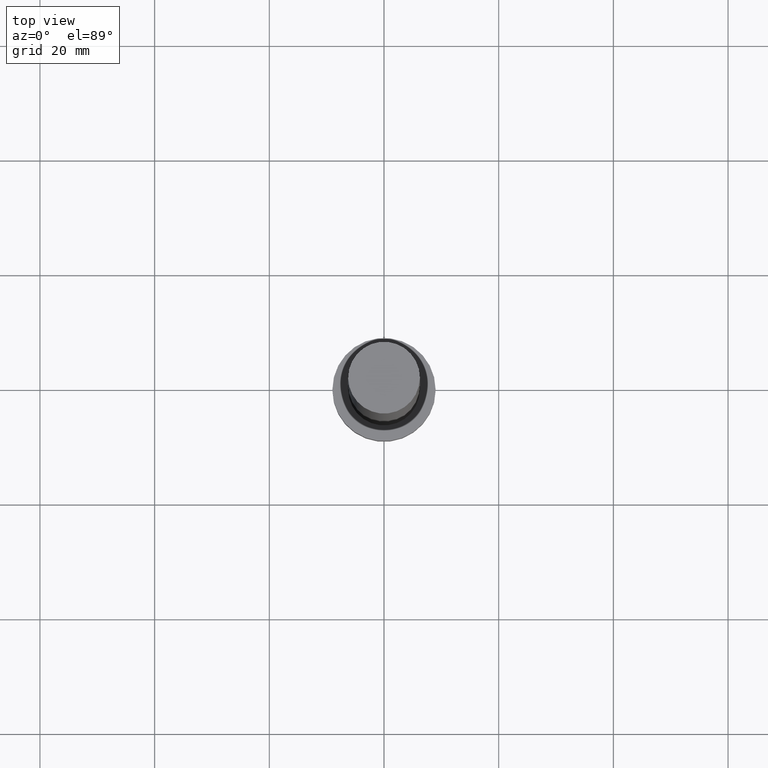
[diagram: clean part render]
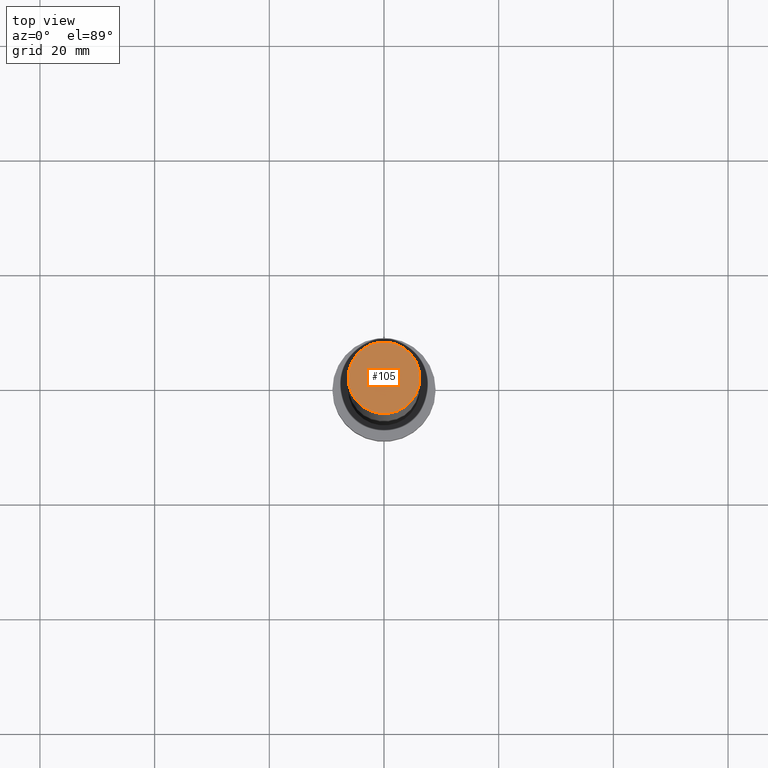
[diagram: same view with one face highlighted and labeled with its STEP entity id]
A machine part, top view. The second image highlights one B-rep face of the part: STEP entity #105.
In plain terms, the highlighted planar face has unit normal (0, 0, 1).
Its self-contained STEP definition (entity closure, byte-faithful):
#13 = CARTESIAN_POINT ( 'NONE',  ( 0.000000000000000000, 0.000000000000000000, 125.0000000000000000 ) ) ;
#18 = AXIS2_PLACEMENT_3D ( 'NONE', #206, #222, #106 ) ;
#26 = CIRCLE ( 'NONE', #211, 6.250000000000000000 ) ;
#54 = DIRECTION ( 'NONE',  ( 1.000000000000000000, 0.000000000000000000, -0.000000000000000000 ) ) ;
#70 = DIRECTION ( 'NONE',  ( 0.000000000000000000, 0.000000000000000000, 1.000000000000000000 ) ) ;
#72 = CARTESIAN_POINT ( 'NONE',  ( 0.000000000000000000, 0.000000000000000000, 125.0000000000000000 ) ) ;
#87 = ORIENTED_EDGE ( 'NONE', *, *, #139, .T. ) ;
#93 = EDGE_LOOP ( 'NONE', ( #128, #87 ) ) ;
#96 = PLANE ( 'NONE',  #168 ) ;
#105 = ADVANCED_FACE ( 'NONE', ( #135 ), #96, .T. ) ;
#106 = DIRECTION ( 'NONE',  ( 1.000000000000000000, 0.000000000000000000, 0.000000000000000000 ) ) ;
#115 = VERTEX_POINT ( 'NONE', #116 ) ;
#116 = CARTESIAN_POINT ( 'NONE',  ( 6.250000000000000000, 7.654042494670957606E-16, 125.0000000000000000 ) ) ;
#120 = CARTESIAN_POINT ( 'NONE',  ( -6.250000000000000000, 0.000000000000000000, 125.0000000000000000 ) ) ;
#128 = ORIENTED_EDGE ( 'NONE', *, *, #228, .T. ) ;
#135 = FACE_OUTER_BOUND ( 'NONE', #93, .T. ) ;
#139 = EDGE_CURVE ( 'NONE', #115, #176, #26, .T. ) ;
#141 = CIRCLE ( 'NONE', #18, 6.250000000000000000 ) ;
#168 = AXIS2_PLACEMENT_3D ( 'NONE', #13, #70, #54 ) ;
#176 = VERTEX_POINT ( 'NONE', #120 ) ;
#200 = DIRECTION ( 'NONE',  ( 1.000000000000000000, 0.000000000000000000, 0.000000000000000000 ) ) ;
#206 = CARTESIAN_POINT ( 'NONE',  ( 0.000000000000000000, 0.000000000000000000, 125.0000000000000000 ) ) ;
#211 = AXIS2_PLACEMENT_3D ( 'NONE', #72, #221, #200 ) ;
#221 = DIRECTION ( 'NONE',  ( 0.000000000000000000, 0.000000000000000000, 1.000000000000000000 ) ) ;
#222 = DIRECTION ( 'NONE',  ( 0.000000000000000000, 0.000000000000000000, 1.000000000000000000 ) ) ;
#228 = EDGE_CURVE ( 'NONE', #176, #115, #141, .T. ) ;